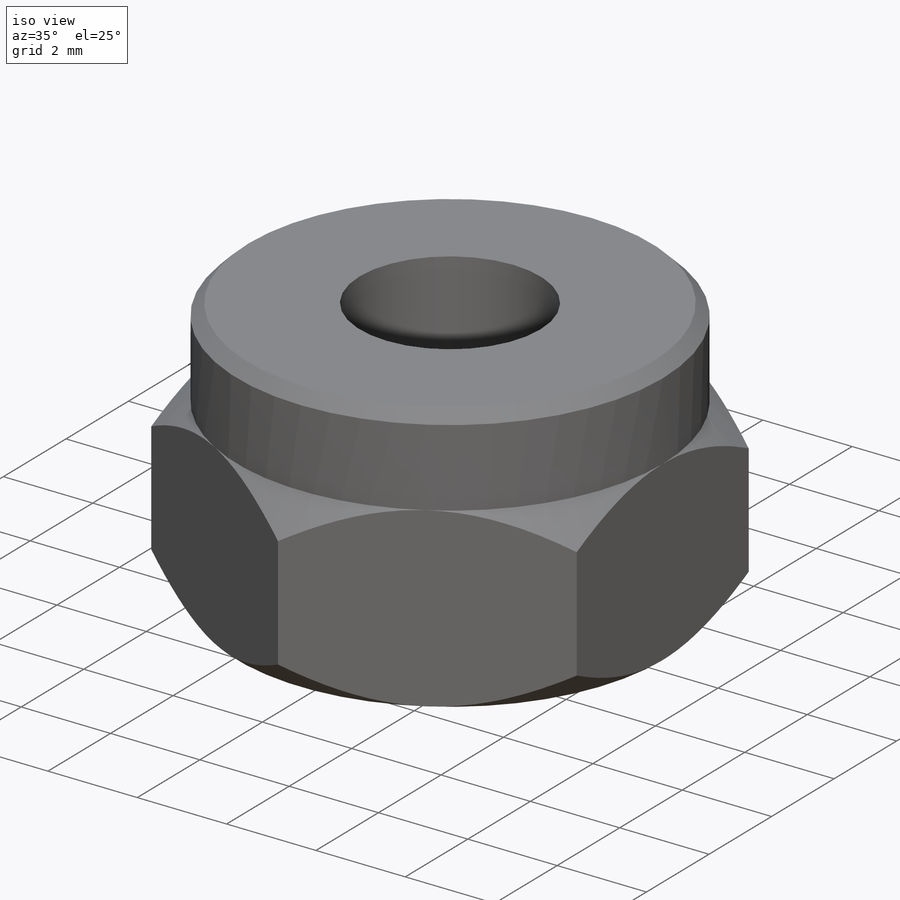
[diagram: iso view]
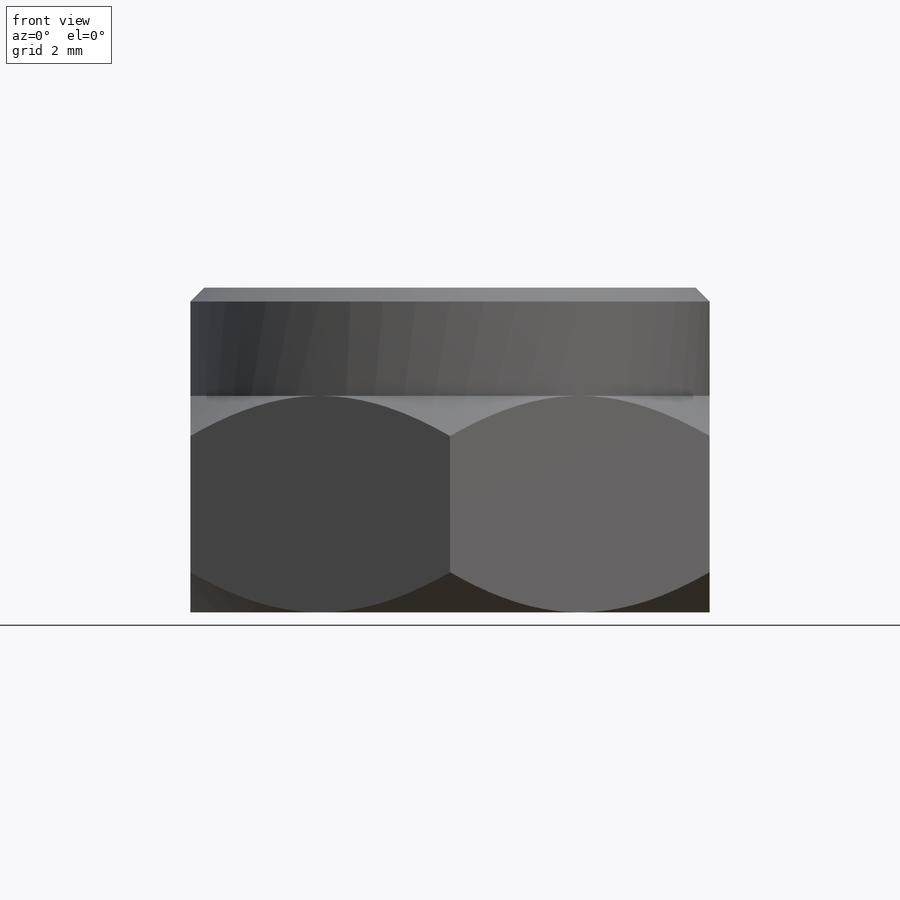
[diagram: front view]
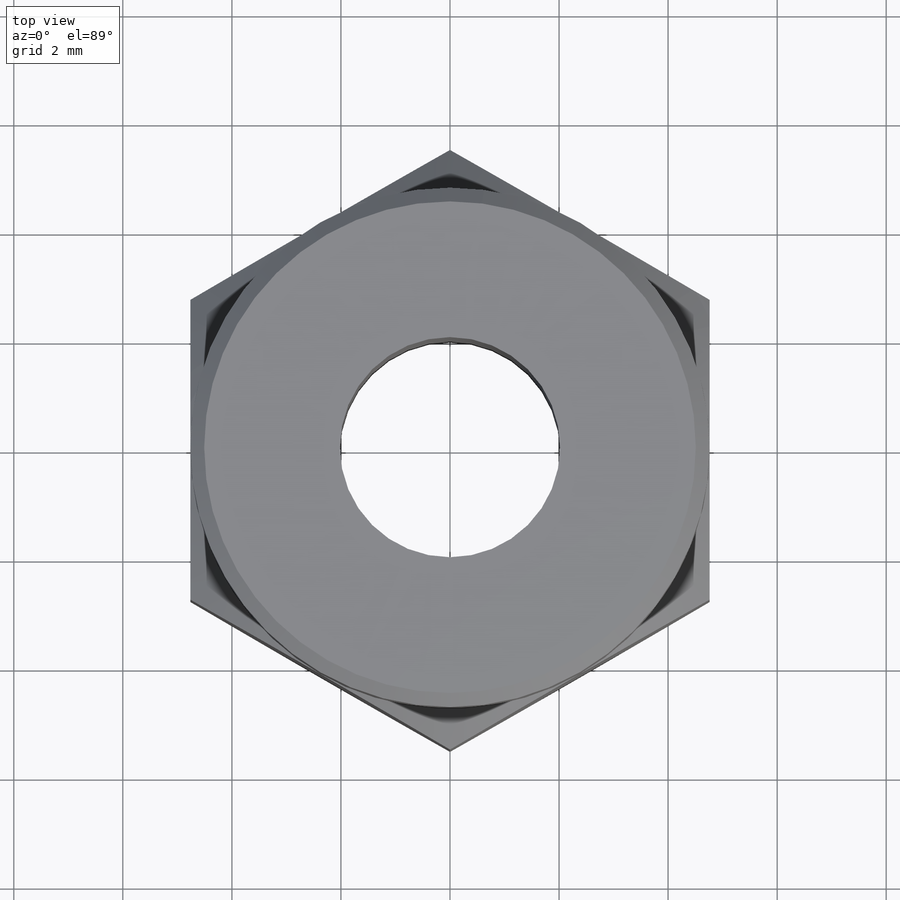
[diagram: top view]
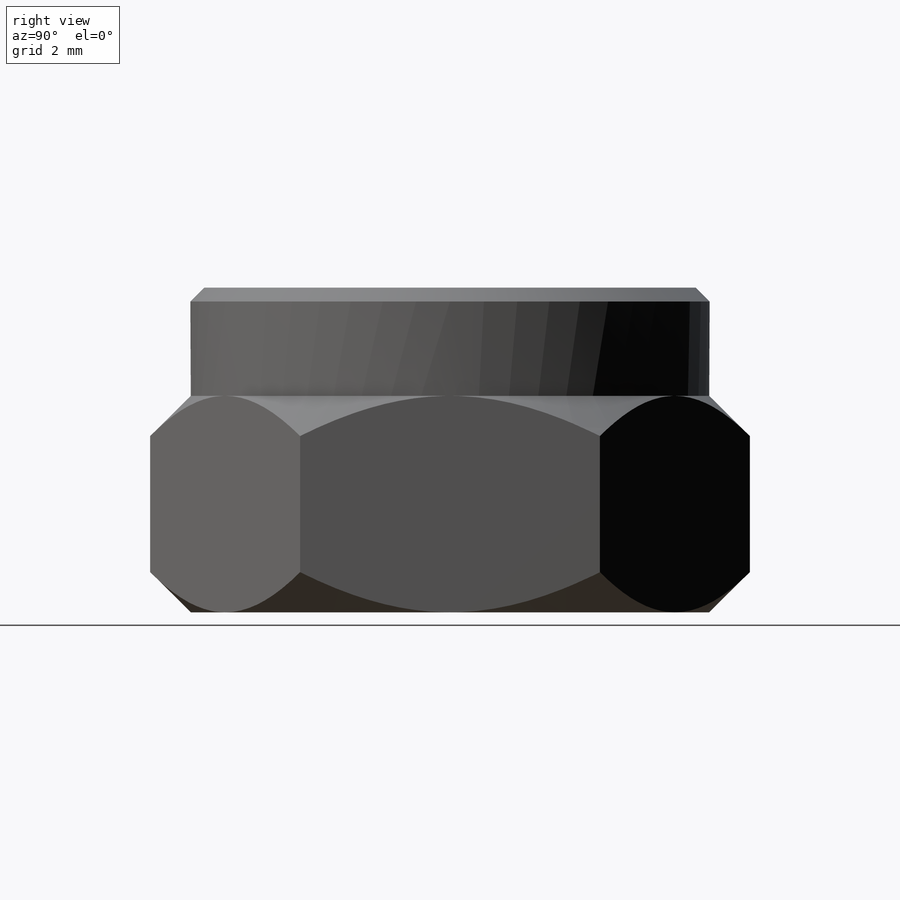
[diagram: right view]
SOLIDWORKS PART (.sldprt)
format: sldprt  version: not decoded by parser v0  size: 227,840 bytes
history: native  units: mm
features: sketch x5, extrude x2, material x1, cut_extrude x1, mirror x1, hole x1, chamfer x1 (+16 scaffold rows collapsed)
feature tree (28):
  scaffold x16  (default folders/planes/origin — collapsed)
  material  "AISI 4130 Steel, normalized at 870C"
  sketch  "Sketch1"  dims[D1=9.525mm]
  extrude  "Extrude1"  Depth=3.97002mm
  sketch  "Sketch2"
  cut_extrude  "Extrude3"  Depth=3.97002mm
  mirror  "Mirror1"
  sketch  "Sketch3"
  extrude  "Extrude4"  Depth=1.984375mm
  hole  "#21 (0.159) Diameter Hole1"  Diameter=4.0386mm Depth=5.954395mm
  sketch  "Sketch5"
  sketch  "Sketch6"  dims[hole-wizard template sketch: 59 standard entries collapsed; hole parameters kept: c18.Thru Hole Dia.=4.0386mm c18.Thru Hole Depth=~5.954395mm]
  chamfer  "Chamfer1"  Distance=0.254mm Angle=45deg
decode coverage: 7 of 11 modeling features carry decoded parameters
note: ~ marks probable driven/reference dimensions
note: suppression state not decoded; provenance and decode notes live in map.json
